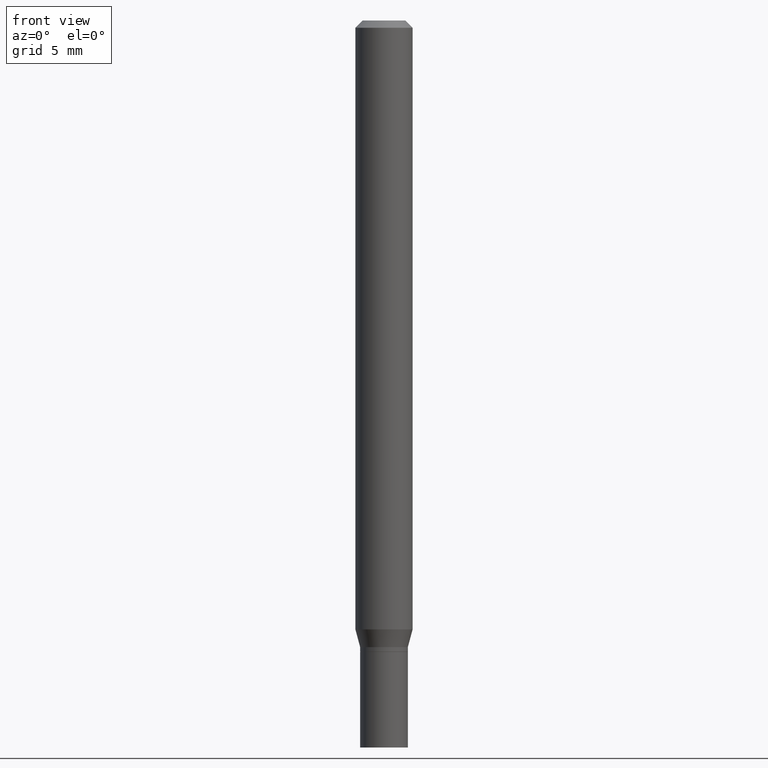
[diagram: clean part render]
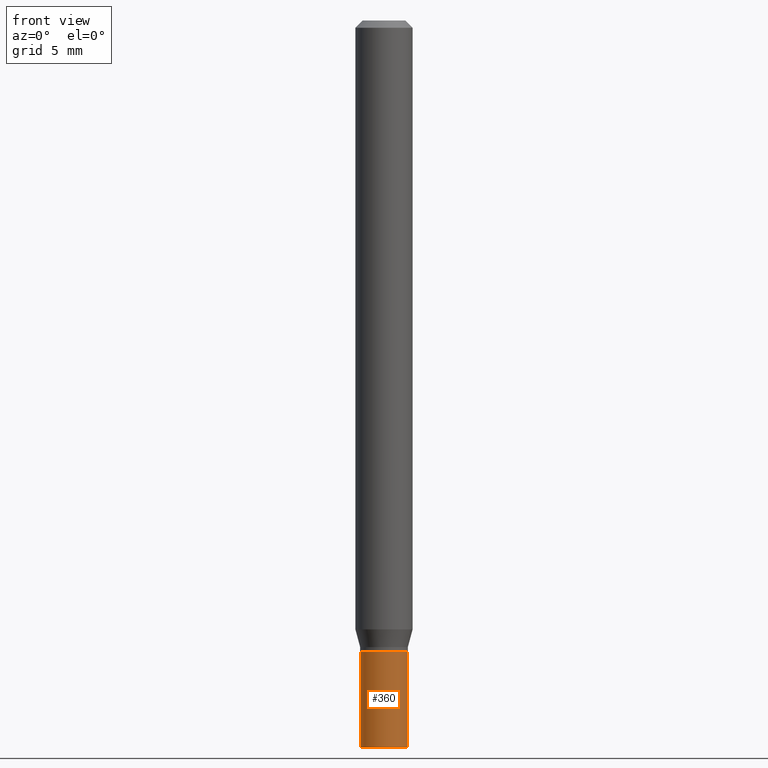
[diagram: same view with one face highlighted and labeled with its STEP entity id]
A machine part, front view. The second image highlights one B-rep face of the part: STEP entity #360.
In plain terms, the highlighted cylindrical surface (edge-blend (fillet) strip) has radius 1.2497 mm, axis along (-0, 0, 1).
Its self-contained STEP definition (entity closure, byte-faithful):
#4 = EDGE_LOOP ( 'NONE', ( #274, #415, #161, #230 ) ) ;
#12 = CARTESIAN_POINT ( 'NONE',  ( 3.668203209277704895E-29, -5.237222008264718177E-15, -1.500000000000000222 ) ) ;
#14 = LINE ( 'NONE', #454, #310 ) ;
#16 = CIRCLE ( 'NONE', #235, 0.04920000000000000068 ) ;
#40 = EDGE_CURVE ( 'NONE', #169, #286, #72, .T. ) ;
#47 = DIRECTION ( 'NONE',  ( -2.445468806185136597E-29, 3.491481338843145583E-15, 1.000000000000000000 ) ) ;
#65 = VERTEX_POINT ( 'NONE', #189 ) ;
#72 = LINE ( 'NONE', #373, #429 ) ;
#111 = AXIS2_PLACEMENT_3D ( 'NONE', #393, #290, #432 ) ;
#113 = CARTESIAN_POINT ( 'NONE',  ( 0.04920000000000000068, -4.893311096388667774E-15, -1.303100000000000147 ) ) ;
#120 = CARTESIAN_POINT ( 'NONE',  ( 0.000000000000000000, 0.000000000000000000, 0.000000000000000000 ) ) ;
#123 = AXIS2_PLACEMENT_3D ( 'NONE', #120, #47, #272 ) ;
#126 = VERTEX_POINT ( 'NONE', #113 ) ;
#161 = ORIENTED_EDGE ( 'NONE', *, *, #314, .T. ) ;
#169 = VERTEX_POINT ( 'NONE', #213 ) ;
#172 = EDGE_CURVE ( 'NONE', #286, #126, #353, .T. ) ;
#189 = CARTESIAN_POINT ( 'NONE',  ( 0.04920000000000000068, -5.580783772006882701E-15, -1.500000000000000222 ) ) ;
#213 = CARTESIAN_POINT ( 'NONE',  ( -0.04920000000000000068, -4.543898644461642453E-15, -1.500000000000000222 ) ) ;
#221 = DIRECTION ( 'NONE',  ( -2.445468806185136597E-29, 3.491481338843145583E-15, 1.000000000000000000 ) ) ;
#230 = ORIENTED_EDGE ( 'NONE', *, *, #172, .F. ) ;
#235 = AXIS2_PLACEMENT_3D ( 'NONE', #12, #221, #305 ) ;
#258 = FACE_OUTER_BOUND ( 'NONE', #4, .T. ) ;
#272 = DIRECTION ( 'NONE',  ( 1.000000000000000000, -6.982962677686266711E-15, 4.876176775795935793E-29 ) ) ;
#274 = ORIENTED_EDGE ( 'NONE', *, *, #40, .F. ) ;
#286 = VERTEX_POINT ( 'NONE', #338 ) ;
#290 = DIRECTION ( 'NONE',  ( -2.445468806185136597E-29, 3.491481338843145583E-15, 1.000000000000000000 ) ) ;
#305 = DIRECTION ( 'NONE',  ( 1.000000000000000000, -6.982962677686261977E-15, 0.000000000000000000 ) ) ;
#310 = VECTOR ( 'NONE', #381, 39.37007874015748143 ) ;
#314 = EDGE_CURVE ( 'NONE', #65, #126, #14, .T. ) ;
#330 = EDGE_CURVE ( 'NONE', #169, #65, #16, .T. ) ;
#338 = CARTESIAN_POINT ( 'NONE',  ( -0.04920000000000000068, -4.543898644461642453E-15, -1.303100000000000147 ) ) ;
#353 = CIRCLE ( 'NONE', #111, 0.04920000000000000068 ) ;
#360 = ADVANCED_FACE ( 'NONE', ( #258 ), #377, .T. ) ;
#371 = DIRECTION ( 'NONE',  ( -2.445468806185136877E-29, 3.491481338843145188E-15, 1.000000000000000000 ) ) ;
#373 = CARTESIAN_POINT ( 'NONE',  ( -0.04920000000000000068, 3.495870259939692963E-16, -2.420116064405413767E-30 ) ) ;
#377 = CYLINDRICAL_SURFACE ( 'NONE', #123, 0.04920000000000000068 ) ;
#381 = DIRECTION ( 'NONE',  ( -2.445468806185136877E-29, 3.491481338843145188E-15, 1.000000000000000000 ) ) ;
#393 = CARTESIAN_POINT ( 'NONE',  ( 3.186690401339851824E-29, -4.549749332646504039E-15, -1.303100000000000147 ) ) ;
#415 = ORIENTED_EDGE ( 'NONE', *, *, #330, .T. ) ;
#429 = VECTOR ( 'NONE', #371, 39.37007874015748143 ) ;
#432 = DIRECTION ( 'NONE',  ( 1.000000000000000000, -6.982962677686261977E-15, 0.000000000000000000 ) ) ;
#454 = CARTESIAN_POINT ( 'NONE',  ( 0.04920000000000000068, -3.435617637421643269E-16, 2.399078973691600472E-30 ) ) ;